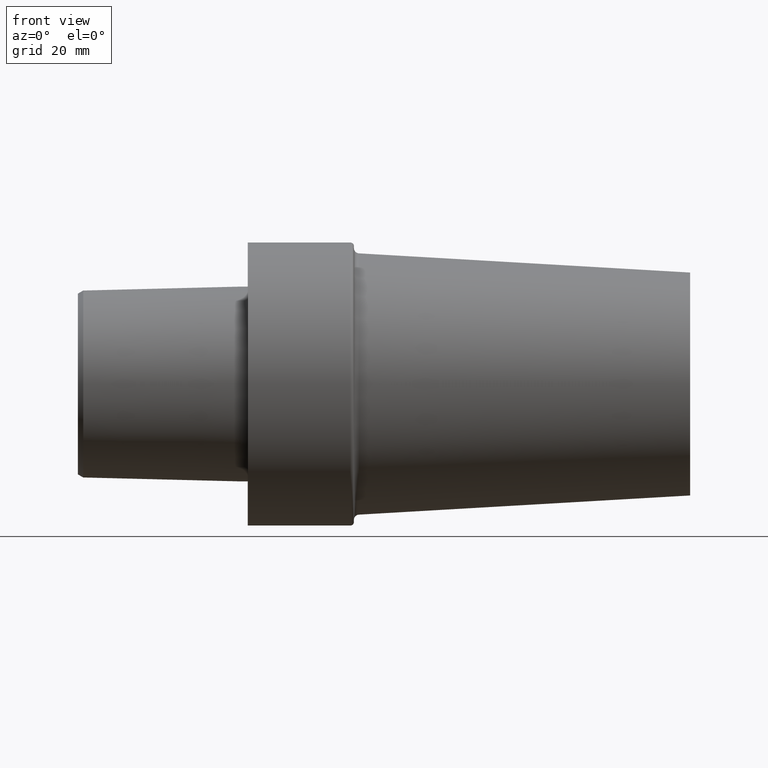
[diagram: clean part render]
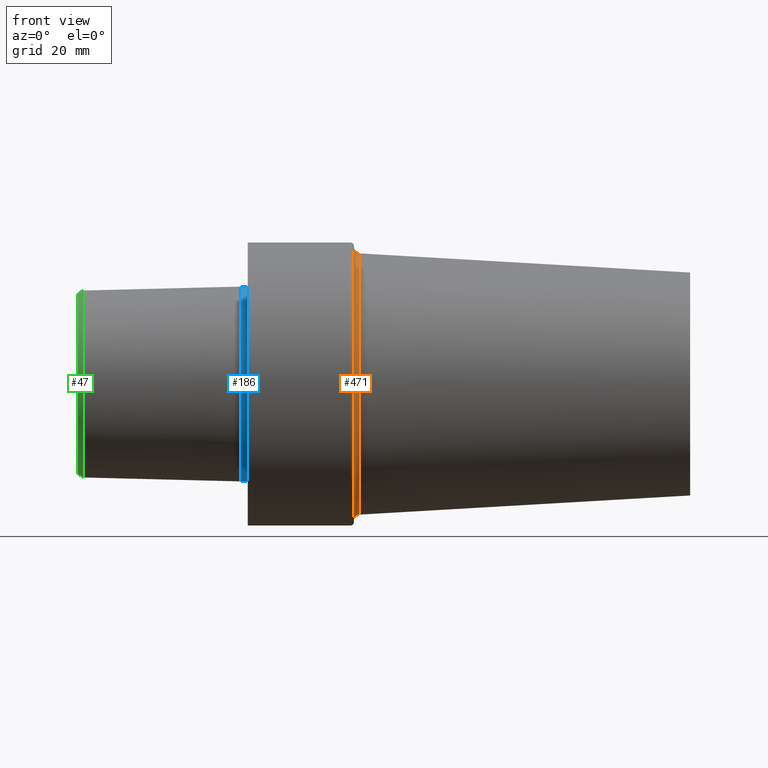
[diagram: same view with three faces highlighted in distinct colors, each labeled with its STEP entity id]
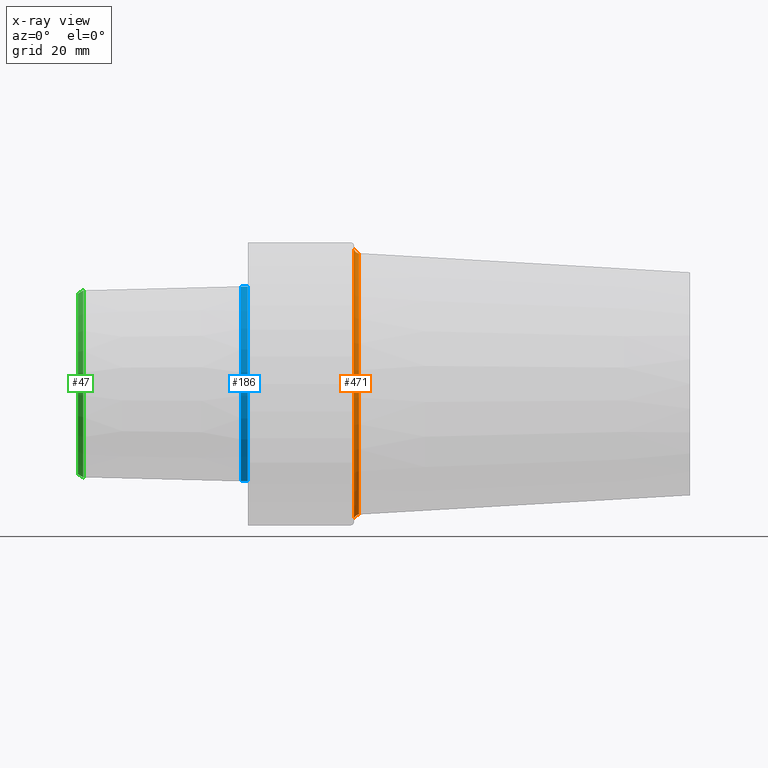
[diagram: x-ray of the same camera — body ghosted, the three highlighted faces saturated]
A machine part, front view with three faces highlighted in distinct colors.
The next image is the same camera in x-ray (body ghosted, the three faces saturated) — at least one of them is partly hidden behind the body in this view.
Their STEP definitions:

[orange] entity #471 — the highlighted toroidal blend (fillet) surface has major radius 38.4157 mm and minor (blend) radius 1.5 mm.
#44 = CIRCLE ( 'NONE', #489, 1.499999998470002982 ) ;
#89 = ORIENTED_EDGE ( 'NONE', *, *, #117, .T. ) ;
#113 = ORIENTED_EDGE ( 'NONE', *, *, #124, .F. ) ;
#114 = DIRECTION ( 'NONE',  ( 0.000000000000000000, 0.000000000000000000, 1.000000000000000000 ) ) ;
#115 = CARTESIAN_POINT ( 'NONE',  ( 31.41330303795843193, 0.000000000000000000, 36.91817715234346053 ) ) ;
#117 = EDGE_CURVE ( 'NONE', #517, #125, #467, .T. ) ;
#124 = EDGE_CURVE ( 'NONE', #352, #125, #273, .T. ) ;
#125 = VERTEX_POINT ( 'NONE', #115 ) ;
#139 = CIRCLE ( 'NONE', #474, 38.41566960081601678 ) ;
#140 = CARTESIAN_POINT ( 'NONE',  ( 31.41330303795843193, 0.000000000000000000, 0.000000000000000000 ) ) ;
#182 = ORIENTED_EDGE ( 'NONE', *, *, #532, .T. ) ;
#190 = CARTESIAN_POINT ( 'NONE',  ( 31.49999996787000001, 0.000000000000000000, 38.41566960232574246 ) ) ;
#213 = AXIS2_PLACEMENT_3D ( 'NONE', #498, #330, #367 ) ;
#233 = FACE_OUTER_BOUND ( 'NONE', #349, .T. ) ;
#238 = CARTESIAN_POINT ( 'NONE',  ( 31.41330303795843193, 4.521172747997237922E-15, -36.91817715234346053 ) ) ;
#240 = AXIS2_PLACEMENT_3D ( 'NONE', #190, #328, #451 ) ;
#254 = ORIENTED_EDGE ( 'NONE', *, *, #484, .F. ) ;
#273 = CIRCLE ( 'NONE', #240, 1.499999998470002982 ) ;
#280 = CARTESIAN_POINT ( 'NONE',  ( 29.99999996940000102, 4.704562681466597716E-15, -38.41566960157086186 ) ) ;
#294 = DIRECTION ( 'NONE',  ( 0.000000000000000000, -1.224646799147350249E-16, 1.000000000000000000 ) ) ;
#301 = DIRECTION ( 'NONE',  ( 0.000000000000000000, 1.000000000000000000, 1.224646799147351975E-16 ) ) ;
#309 = CARTESIAN_POINT ( 'NONE',  ( 29.99999996940000102, 0.000000000000000000, 38.41566960157086186 ) ) ;
#316 = DIRECTION ( 'NONE',  ( -1.000000000000000000, 0.000000000000000000, 0.000000000000000000 ) ) ;
#328 = DIRECTION ( 'NONE',  ( 0.000000000000000000, -1.000000000000000000, 0.000000000000000000 ) ) ;
#330 = DIRECTION ( 'NONE',  ( -1.000000000000000000, 0.000000000000000000, 0.000000000000000000 ) ) ;
#337 = AXIS2_PLACEMENT_3D ( 'NONE', #140, #316, #475 ) ;
#346 = TOROIDAL_SURFACE ( 'NONE', #213, 38.41566960232574246, 1.499999998469999873 ) ;
#349 = EDGE_LOOP ( 'NONE', ( #254, #182, #89, #113 ) ) ;
#352 = VERTEX_POINT ( 'NONE', #309 ) ;
#367 = DIRECTION ( 'NONE',  ( 0.000000000000000000, 0.000000000000000000, 1.000000000000000000 ) ) ;
#375 = VERTEX_POINT ( 'NONE', #280 ) ;
#407 = DIRECTION ( 'NONE',  ( -1.000000000000000000, 0.000000000000000000, 0.000000000000000000 ) ) ;
#451 = DIRECTION ( 'NONE',  ( 0.000000000000000000, 0.000000000000000000, -1.000000000000000000 ) ) ;
#462 = CARTESIAN_POINT ( 'NONE',  ( 31.49999996787000001, 4.704562681559045903E-15, -38.41566960232574246 ) ) ;
#467 = CIRCLE ( 'NONE', #337, 36.91817715234346053 ) ;
#471 = ADVANCED_FACE ( 'NONE', ( #233 ), #346, .F. ) ;
#474 = AXIS2_PLACEMENT_3D ( 'NONE', #537, #407, #114 ) ;
#475 = DIRECTION ( 'NONE',  ( 0.000000000000000000, 0.000000000000000000, 1.000000000000000000 ) ) ;
#484 = EDGE_CURVE ( 'NONE', #375, #352, #139, .T. ) ;
#489 = AXIS2_PLACEMENT_3D ( 'NONE', #462, #301, #294 ) ;
#498 = CARTESIAN_POINT ( 'NONE',  ( 31.49999996787000001, 0.000000000000000000, 0.000000000000000000 ) ) ;
#517 = VERTEX_POINT ( 'NONE', #238 ) ;
#532 = EDGE_CURVE ( 'NONE', #375, #517, #44, .T. ) ;
#537 = CARTESIAN_POINT ( 'NONE',  ( 29.99999996940000102, 0.000000000000000000, 0.000000000000000000 ) ) ;

[blue] entity #186 — the highlighted cylindrical surface (partial cylindrical patch) has radius 27.5265 mm, axis along (-1, 0, 0).
#10 = VERTEX_POINT ( 'NONE', #457 ) ;
#37 = DIRECTION ( 'NONE',  ( -1.000000000000000000, 0.000000000000000000, 0.000000000000000000 ) ) ;
#49 = ORIENTED_EDGE ( 'NONE', *, *, #413, .T. ) ;
#67 = FACE_OUTER_BOUND ( 'NONE', #530, .T. ) ;
#75 = LINE ( 'NONE', #368, #485 ) ;
#84 = CIRCLE ( 'NONE', #300, 27.52650806192296074 ) ;
#102 = AXIS2_PLACEMENT_3D ( 'NONE', #495, #287, #447 ) ;
#107 = CIRCLE ( 'NONE', #126, 27.52650806192296074 ) ;
#109 = DIRECTION ( 'NONE',  ( 0.000000000000000000, 0.000000000000000000, 1.000000000000000000 ) ) ;
#121 = CARTESIAN_POINT ( 'NONE',  ( -1.940694418020491918, 3.371024998973778328E-15, -27.52650806192296074 ) ) ;
#126 = AXIS2_PLACEMENT_3D ( 'NONE', #531, #37, #109 ) ;
#133 = DIRECTION ( 'NONE',  ( -1.000000000000000000, 0.000000000000000000, 0.000000000000000000 ) ) ;
#166 = ORIENTED_EDGE ( 'NONE', *, *, #400, .F. ) ;
#178 = CARTESIAN_POINT ( 'NONE',  ( -1.940694418020491918, 0.000000000000000000, 0.000000000000000000 ) ) ;
#186 = ADVANCED_FACE ( 'NONE', ( #67 ), #229, .T. ) ;
#222 = EDGE_CURVE ( 'NONE', #536, #514, #307, .T. ) ;
#229 = CYLINDRICAL_SURFACE ( 'NONE', #102, 27.52650806192296074 ) ;
#250 = CARTESIAN_POINT ( 'NONE',  ( 0.000000000000000000, 0.000000000000000000, 27.52650806192296074 ) ) ;
#265 = ORIENTED_EDGE ( 'NONE', *, *, #343, .F. ) ;
#287 = DIRECTION ( 'NONE',  ( -1.000000000000000000, 0.000000000000000000, 0.000000000000000000 ) ) ;
#288 = ORIENTED_EDGE ( 'NONE', *, *, #222, .T. ) ;
#297 = VERTEX_POINT ( 'NONE', #121 ) ;
#300 = AXIS2_PLACEMENT_3D ( 'NONE', #178, #133, #468 ) ;
#307 = LINE ( 'NONE', #511, #405 ) ;
#343 = EDGE_CURVE ( 'NONE', #297, #514, #84, .T. ) ;
#363 = CARTESIAN_POINT ( 'NONE',  ( -1.940694418020491918, 0.000000000000000000, 27.52650806192296074 ) ) ;
#368 = CARTESIAN_POINT ( 'NONE',  ( -47.99999995373141815, 3.371024998973778328E-15, -27.52650806192296074 ) ) ;
#400 = EDGE_CURVE ( 'NONE', #10, #297, #75, .T. ) ;
#405 = VECTOR ( 'NONE', #455, 1000.000000000000000 ) ;
#413 = EDGE_CURVE ( 'NONE', #10, #536, #107, .T. ) ;
#447 = DIRECTION ( 'NONE',  ( 0.000000000000000000, 0.000000000000000000, 1.000000000000000000 ) ) ;
#455 = DIRECTION ( 'NONE',  ( -1.000000000000000000, 0.000000000000000000, 0.000000000000000000 ) ) ;
#457 = CARTESIAN_POINT ( 'NONE',  ( 0.000000000000000000, 3.371024998973778328E-15, -27.52650806192296074 ) ) ;
#468 = DIRECTION ( 'NONE',  ( 0.000000000000000000, 0.000000000000000000, 1.000000000000000000 ) ) ;
#483 = DIRECTION ( 'NONE',  ( -1.000000000000000000, 0.000000000000000000, 0.000000000000000000 ) ) ;
#485 = VECTOR ( 'NONE', #483, 1000.000000000000000 ) ;
#495 = CARTESIAN_POINT ( 'NONE',  ( -47.99999995373141815, 0.000000000000000000, 0.000000000000000000 ) ) ;
#511 = CARTESIAN_POINT ( 'NONE',  ( -47.99999995373141815, 0.000000000000000000, 27.52650806192296074 ) ) ;
#514 = VERTEX_POINT ( 'NONE', #363 ) ;
#530 = EDGE_LOOP ( 'NONE', ( #166, #49, #288, #265 ) ) ;
#531 = CARTESIAN_POINT ( 'NONE',  ( 0.000000000000000000, 0.000000000000000000, 0.000000000000000000 ) ) ;
#536 = VERTEX_POINT ( 'NONE', #250 ) ;

[green] entity #47 — the highlighted conical surface has half-angle 30 deg.
#21 = DIRECTION ( 'NONE',  ( 0.000000000000000000, 0.000000000000000000, -1.000000000000000000 ) ) ;
#26 = CARTESIAN_POINT ( 'NONE',  ( -47.99999995373141815, 0.000000000000000000, -25.54657486860418558 ) ) ;
#30 = DIRECTION ( 'NONE',  ( -1.000000000000000000, 0.000000000000000000, 0.000000000000000000 ) ) ;
#47 = ADVANCED_FACE ( 'NONE', ( #392 ), #261, .T. ) ;
#72 = DIRECTION ( 'NONE',  ( -1.000000000000000000, 0.000000000000000000, 0.000000000000000000 ) ) ;
#91 = CIRCLE ( 'NONE', #193, 25.54657486860418558 ) ;
#98 = DIRECTION ( 'NONE',  ( 1.000000000000000000, 0.000000000000000000, 0.000000000000000000 ) ) ;
#105 = CARTESIAN_POINT ( 'NONE',  ( -46.49999995257000052, 0.000000000000000000, 0.000000000000000000 ) ) ;
#151 = CIRCLE ( 'NONE', #459, 26.41260027305914804 ) ;
#153 = CARTESIAN_POINT ( 'NONE',  ( -46.49999995257000052, 3.302817818564909263E-15, 26.41260027305914804 ) ) ;
#163 = DIRECTION ( 'NONE',  ( 0.000000000000000000, 0.000000000000000000, 1.000000000000000000 ) ) ;
#169 = ORIENTED_EDGE ( 'NONE', *, *, #414, .F. ) ;
#193 = AXIS2_PLACEMENT_3D ( 'NONE', #325, #30, #292 ) ;
#198 = CARTESIAN_POINT ( 'NONE',  ( -46.49999995257000052, 0.000000000000000000, -26.41260027305914804 ) ) ;
#200 = CARTESIAN_POINT ( 'NONE',  ( -46.49999995257000052, 3.234610638156039409E-15, 26.41260027305914804 ) ) ;
#204 = LINE ( 'NONE', #200, #315 ) ;
#219 = ORIENTED_EDGE ( 'NONE', *, *, #249, .F. ) ;
#230 = LINE ( 'NONE', #198, #476 ) ;
#232 = EDGE_LOOP ( 'NONE', ( #219, #169, #251, #293 ) ) ;
#249 = EDGE_CURVE ( 'NONE', #428, #502, #204, .T. ) ;
#251 = ORIENTED_EDGE ( 'NONE', *, *, #429, .T. ) ;
#260 = CARTESIAN_POINT ( 'NONE',  ( -46.49999995257000052, 0.000000000000000000, -26.41260027305914804 ) ) ;
#261 = CONICAL_SURFACE ( 'NONE', #336, 26.41260027305914804, 0.5235987755982987046 ) ;
#292 = DIRECTION ( 'NONE',  ( 0.000000000000000000, 0.000000000000000000, 1.000000000000000000 ) ) ;
#293 = ORIENTED_EDGE ( 'NONE', *, *, #372, .T. ) ;
#315 = VECTOR ( 'NONE', #374, 1000.000000000000000 ) ;
#325 = CARTESIAN_POINT ( 'NONE',  ( -47.99999995373141815, 0.000000000000000000, 0.000000000000000000 ) ) ;
#336 = AXIS2_PLACEMENT_3D ( 'NONE', #105, #98, #21 ) ;
#355 = VERTEX_POINT ( 'NONE', #260 ) ;
#372 = EDGE_CURVE ( 'NONE', #355, #502, #151, .T. ) ;
#374 = DIRECTION ( 'NONE',  ( 0.8660254037844387076, 6.123233995736768501E-17, 0.4999999999999998890 ) ) ;
#392 = FACE_OUTER_BOUND ( 'NONE', #232, .T. ) ;
#404 = DIRECTION ( 'NONE',  ( 0.8660254037844387076, 0.000000000000000000, -0.4999999999999998890 ) ) ;
#414 = EDGE_CURVE ( 'NONE', #512, #428, #91, .T. ) ;
#428 = VERTEX_POINT ( 'NONE', #488 ) ;
#429 = EDGE_CURVE ( 'NONE', #512, #355, #230, .T. ) ;
#459 = AXIS2_PLACEMENT_3D ( 'NONE', #497, #72, #163 ) ;
#476 = VECTOR ( 'NONE', #404, 1000.000000000000000 ) ;
#488 = CARTESIAN_POINT ( 'NONE',  ( -47.99999995373141815, 3.181581876178735270E-15, 25.54657486860418558 ) ) ;
#497 = CARTESIAN_POINT ( 'NONE',  ( -46.49999995257000052, 0.000000000000000000, 0.000000000000000000 ) ) ;
#502 = VERTEX_POINT ( 'NONE', #153 ) ;
#512 = VERTEX_POINT ( 'NONE', #26 ) ;